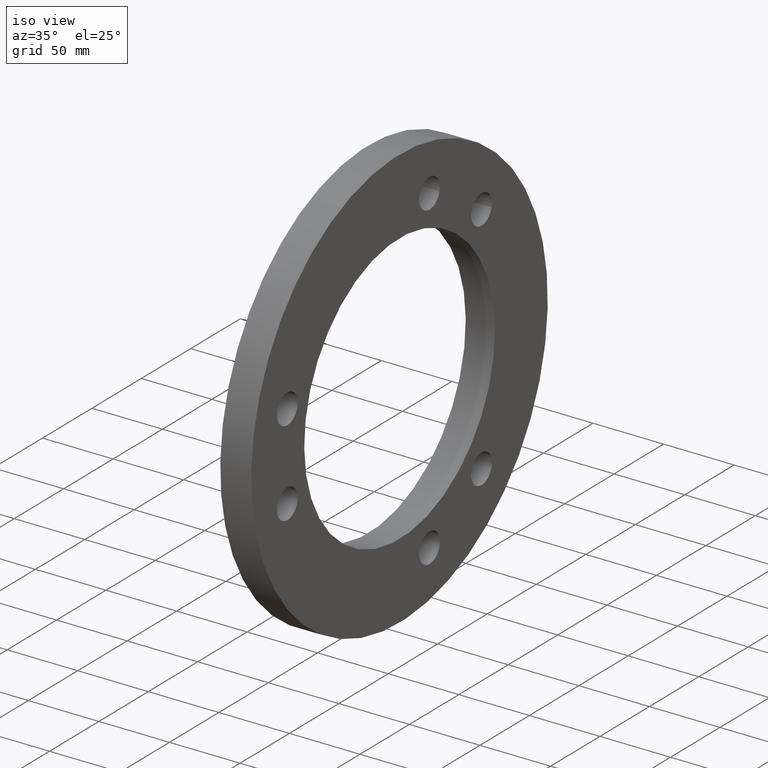
[diagram: clean part render]
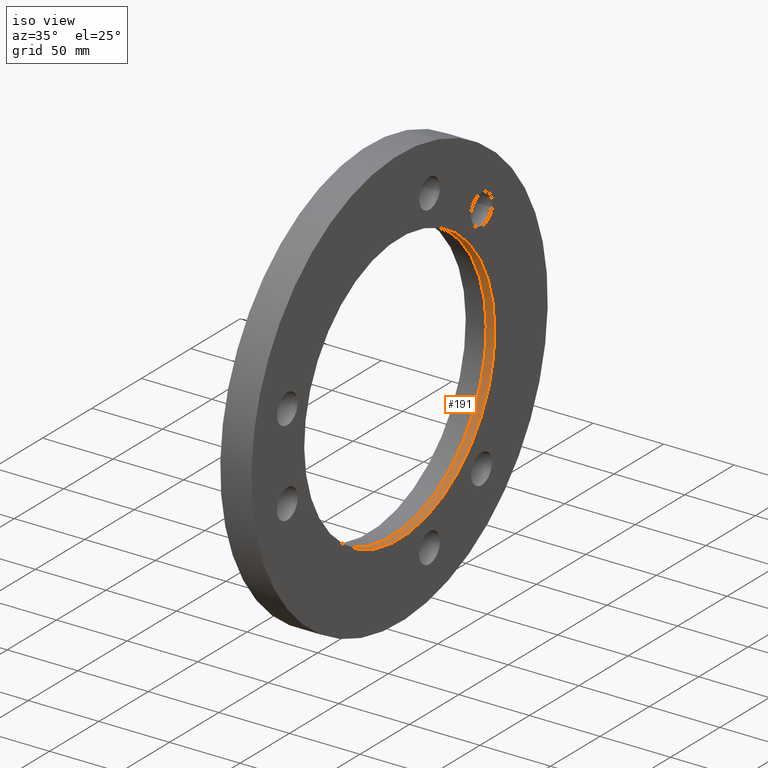
[diagram: same view with one face highlighted and labeled with its STEP entity id]
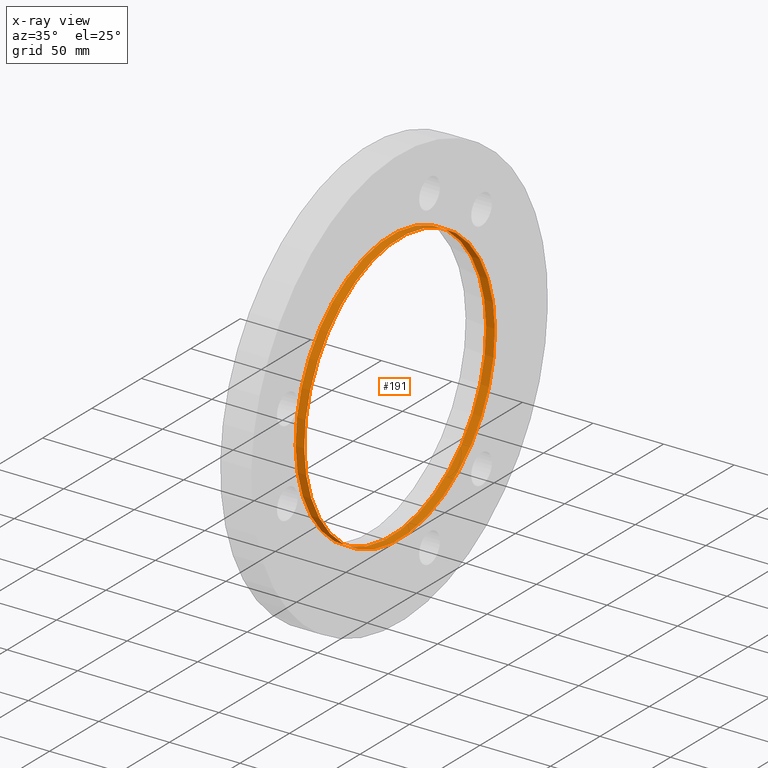
[diagram: x-ray of the same camera — body ghosted, the highlighted face saturated]
A machine part, iso view. The second image highlights one B-rep face of the part: STEP entity #191.
The next image is the same camera in x-ray: the body ghosted, the highlighted face saturated — about 0% of this face is hidden behind the body in this view.
In plain terms, the highlighted cylindrical surface (bore or boss wall) has radius 96.45 mm, axis along (-1, 0, 0).
Its self-contained STEP definition (entity closure, byte-faithful):
#49=ORIENTED_EDGE('',*,*,#73,.T.);
#50=ORIENTED_EDGE('',*,*,#72,.F.);
#72=EDGE_CURVE('',#89,#89,#106,.T.);
#73=EDGE_CURVE('',#90,#90,#107,.T.);
#89=VERTEX_POINT('',#352);
#90=VERTEX_POINT('',#355);
#106=CIRCLE('',#243,96.45);
#107=CIRCLE('',#245,96.45);
#134=EDGE_LOOP('',(#49));
#135=EDGE_LOOP('',(#50));
#168=FACE_BOUND('',#134,.T.);
#169=FACE_BOUND('',#135,.T.);
#181=CYLINDRICAL_SURFACE('',#244,96.45);
#191=ADVANCED_FACE('',(#168,#169),#181,.F.);
#243=AXIS2_PLACEMENT_3D('',#351,#298,#299);
#244=AXIS2_PLACEMENT_3D('',#353,#300,#301);
#245=AXIS2_PLACEMENT_3D('',#354,#302,#303);
#298=DIRECTION('',(-1.,0.,0.));
#299=DIRECTION('',(0.,0.,1.));
#300=DIRECTION('',(-1.,0.,0.));
#301=DIRECTION('',(0.,0.,1.));
#302=DIRECTION('',(-1.,0.,0.));
#303=DIRECTION('',(0.,0.,1.));
#351=CARTESIAN_POINT('',(22.,0.,0.));
#352=CARTESIAN_POINT('',(22.,0.,96.45));
#353=CARTESIAN_POINT('',(-60.,0.,0.));
#354=CARTESIAN_POINT('',(15.880036816357,0.,0.));
#355=CARTESIAN_POINT('',(15.880036816357,0.,96.45));